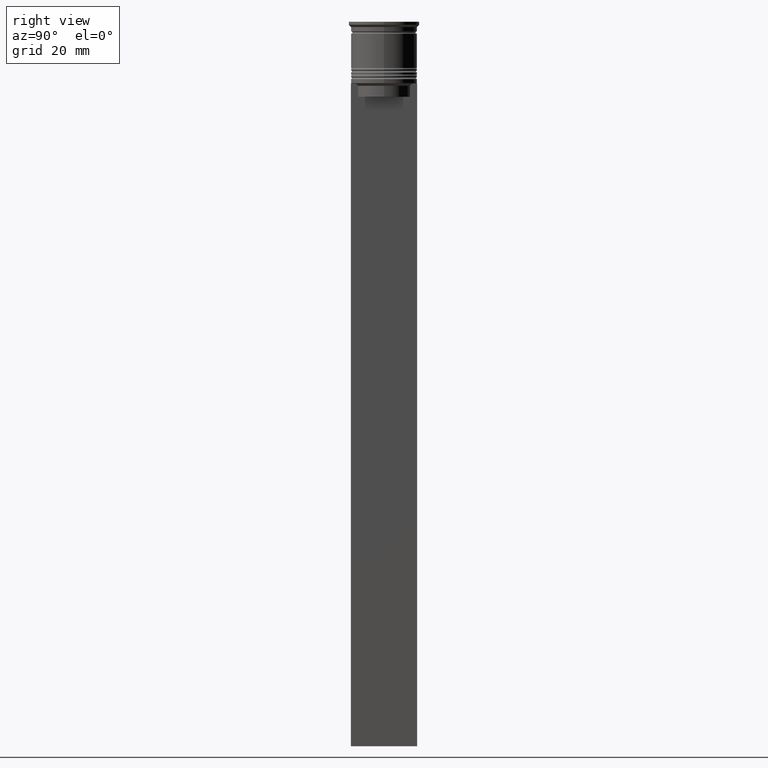
[diagram: clean part render]
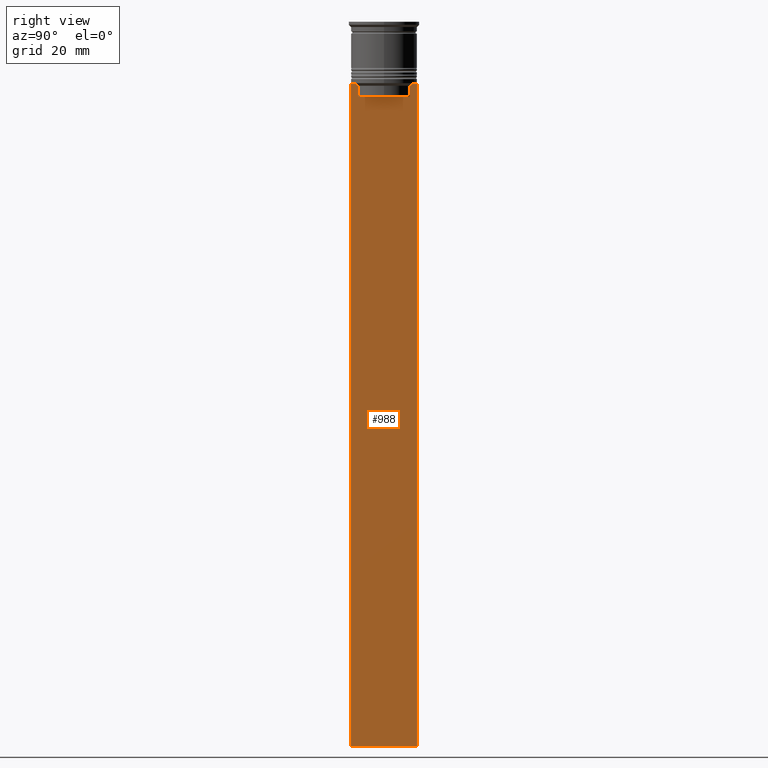
[diagram: same view with one face highlighted and labeled with its STEP entity id]
A machine part, right view. The second image highlights one B-rep face of the part: STEP entity #988.
In plain terms, the highlighted planar face has unit normal (-1, 0, 0).
Its self-contained STEP definition (entity closure, byte-faithful):
#14 = VERTEX_POINT ( 'NONE', #1249 ) ;
#16 = VECTOR ( 'NONE', #2387, 1000.000000000000000 ) ;
#17 = ORIENTED_EDGE ( 'NONE', *, *, #204, .T. ) ;
#111 = VECTOR ( 'NONE', #1079, 1000.000000000000000 ) ;
#159 = EDGE_CURVE ( 'NONE', #1204, #463, #1684, .T. ) ;
#169 = CARTESIAN_POINT ( 'NONE',  ( 0.5000000000000000000, -5.878775382679625849, -17.00000000000000000 ) ) ;
#193 = VECTOR ( 'NONE', #1290, 1000.000000000000000 ) ;
#204 = EDGE_CURVE ( 'NONE', #2077, #398, #2284, .T. ) ;
#208 = CARTESIAN_POINT ( 'NONE',  ( 0.5000000000000000000, -6.380438856379706536, -14.00000000000000178 ) ) ;
#214 = CARTESIAN_POINT ( 'NONE',  ( 0.5000000000000000000, -7.499999999999999112, -14.00000000000000178 ) ) ;
#227 = CARTESIAN_POINT ( 'NONE',  ( 0.5000000000000000000, -6.380438856379706536, -14.00000000000000178 ) ) ;
#290 = DIRECTION ( 'NONE',  ( -1.000000000000000000, 0.000000000000000000, 0.000000000000000000 ) ) ;
#297 = CARTESIAN_POINT ( 'NONE',  ( 0.5000000000000000000, 6.213239387491007015, -14.16668843563492430 ) ) ;
#328 = CARTESIAN_POINT ( 'NONE',  ( 0.5000000000000000000, 6.380438856379706536, -14.00000000000000178 ) ) ;
#331 = CARTESIAN_POINT ( 'NONE',  ( 0.5000000000000000000, 7.383088784512886527, -14.00000000000000178 ) ) ;
#342 = B_SPLINE_CURVE_WITH_KNOTS ( 'NONE', 3,
 ( #2128, #2072, #1937, #208 ),
 .UNSPECIFIED., .F., .F.,
 ( 4, 4 ),
 ( 0.02765270321082434479, 0.02836198271238431559 ),
 .UNSPECIFIED. ) ;
#398 = VERTEX_POINT ( 'NONE', #1179 ) ;
#419 = VECTOR ( 'NONE', #2192, 1000.000000000000000 ) ;
#432 = DIRECTION ( 'NONE',  ( 0.000000000000000000, 0.000000000000000000, -1.000000000000000000 ) ) ;
#435 = CARTESIAN_POINT ( 'NONE',  ( 0.5000000000000000000, 6.380438856379706536, -14.00000000000000178 ) ) ;
#463 = VERTEX_POINT ( 'NONE', #2179 ) ;
#464 = DIRECTION ( 'NONE',  ( 0.000000000000000000, 1.000000000000000000, 0.000000000000000000 ) ) ;
#471 = CARTESIAN_POINT ( 'NONE',  ( 0.5000000000000000000, -7.499999999999999112, -14.00000000000000178 ) ) ;
#518 = EDGE_CURVE ( 'NONE', #14, #1204, #649, .T. ) ;
#547 = DIRECTION ( 'NONE',  ( 0.000000000000000000, 0.000000000000000000, -1.000000000000000000 ) ) ;
#605 = DIRECTION ( 'NONE',  ( 0.000000000000000000, 0.000000000000000000, -1.000000000000000000 ) ) ;
#617 = ORIENTED_EDGE ( 'NONE', *, *, #2481, .T. ) ;
#633 = ORIENTED_EDGE ( 'NONE', *, *, #638, .T. ) ;
#638 = EDGE_CURVE ( 'NONE', #1934, #1193, #2225, .T. ) ;
#649 = LINE ( 'NONE', #659, #419 ) ;
#659 = CARTESIAN_POINT ( 'NONE',  ( 0.5000000000000000000, 5.899999999999998579, -17.00000000000000000 ) ) ;
#708 = LINE ( 'NONE', #1807, #2435 ) ;
#742 = VERTEX_POINT ( 'NONE', #2462 ) ;
#807 = DIRECTION ( 'NONE',  ( 0.000000000000000000, -1.000000000000000000, 0.000000000000000000 ) ) ;
#814 = EDGE_CURVE ( 'NONE', #463, #1934, #342, .T. ) ;
#850 = EDGE_CURVE ( 'NONE', #1043, #1539, #1753, .T. ) ;
#852 = CARTESIAN_POINT ( 'NONE',  ( 0.5000000000000000000, -7.499999999999999112, -14.00000000000000178 ) ) ;
#858 = ORIENTED_EDGE ( 'NONE', *, *, #1808, .T. ) ;
#888 = ORIENTED_EDGE ( 'NONE', *, *, #159, .T. ) ;
#896 = DIRECTION ( 'NONE',  ( 0.000000000000000000, -1.000000000000000000, 0.000000000000000000 ) ) ;
#951 = VECTOR ( 'NONE', #807, 1000.000000000000000 ) ;
#973 = ORIENTED_EDGE ( 'NONE', *, *, #1347, .T. ) ;
#988 = ADVANCED_FACE ( 'NONE', ( #2201 ), #1442, .F. ) ;
#1022 = ORIENTED_EDGE ( 'NONE', *, *, #850, .T. ) ;
#1043 = VERTEX_POINT ( 'NONE', #1065 ) ;
#1065 = CARTESIAN_POINT ( 'NONE',  ( 0.5000000000000000000, 7.500000000000002665, -14.00000000000000178 ) ) ;
#1079 = DIRECTION ( 'NONE',  ( 0.000000000000000000, -1.000000000000000000, 0.000000000000000000 ) ) ;
#1104 = VECTOR ( 'NONE', #432, 1000.000000000000000 ) ;
#1115 = CARTESIAN_POINT ( 'NONE',  ( 0.5000000000000000000, 5.878775382679625849, -14.50000000000000000 ) ) ;
#1150 = VECTOR ( 'NONE', #547, 1000.000000000000000 ) ;
#1169 = ORIENTED_EDGE ( 'NONE', *, *, #518, .T. ) ;
#1179 = CARTESIAN_POINT ( 'NONE',  ( 0.5000000000000000000, 5.878775382679625849, -14.50000000000000000 ) ) ;
#1193 = VERTEX_POINT ( 'NONE', #2274 ) ;
#1204 = VERTEX_POINT ( 'NONE', #169 ) ;
#1228 = LINE ( 'NONE', #1741, #1104 ) ;
#1249 = CARTESIAN_POINT ( 'NONE',  ( 0.5000000000000000000, 5.878775382679625849, -17.00000000000000000 ) ) ;
#1290 = DIRECTION ( 'NONE',  ( -0.000000000000000000, -0.000000000000000000, 1.000000000000000000 ) ) ;
#1295 = CARTESIAN_POINT ( 'NONE',  ( 0.5000000000000000000, 7.500000000000002665, 1.033296378372908997 ) ) ;
#1321 = LINE ( 'NONE', #1295, #1150 ) ;
#1336 = VERTEX_POINT ( 'NONE', #1793 ) ;
#1347 = EDGE_CURVE ( 'NONE', #398, #14, #1228, .T. ) ;
#1354 = VERTEX_POINT ( 'NONE', #1750 ) ;
#1415 = LINE ( 'NONE', #2417, #1490 ) ;
#1429 = EDGE_CURVE ( 'NONE', #1193, #1336, #708, .T. ) ;
#1442 = PLANE ( 'NONE',  #2226 ) ;
#1478 = CARTESIAN_POINT ( 'NONE',  ( 0.5000000000000000000, -5.878775382679625849, 0.000000000000000000 ) ) ;
#1490 = VECTOR ( 'NONE', #464, 1000.000000000000000 ) ;
#1500 = EDGE_LOOP ( 'NONE', ( #858, #17, #973, #1169, #888, #1533, #633, #1907, #1673, #617, #2447, #1022 ) ) ;
#1533 = ORIENTED_EDGE ( 'NONE', *, *, #814, .T. ) ;
#1539 = VERTEX_POINT ( 'NONE', #331 ) ;
#1673 = ORIENTED_EDGE ( 'NONE', *, *, #2020, .T. ) ;
#1684 = LINE ( 'NONE', #1478, #193 ) ;
#1741 = CARTESIAN_POINT ( 'NONE',  ( 0.5000000000000000000, 5.878775382679625849, 0.000000000000000000 ) ) ;
#1750 = CARTESIAN_POINT ( 'NONE',  ( 0.5000000000000000000, -7.499999999999999112, -163.9999999999999716 ) ) ;
#1753 = LINE ( 'NONE', #852, #16 ) ;
#1793 = CARTESIAN_POINT ( 'NONE',  ( 0.5000000000000000000, -7.499999999999999112, -14.00000000000000178 ) ) ;
#1800 = CARTESIAN_POINT ( 'NONE',  ( 0.5000000000000000000, -7.499999999999999112, 1.033296378372908997 ) ) ;
#1807 = CARTESIAN_POINT ( 'NONE',  ( 0.5000000000000000000, -7.499999999999999112, -14.00000000000000178 ) ) ;
#1808 = EDGE_CURVE ( 'NONE', #1539, #2077, #1941, .T. ) ;
#1885 = EDGE_CURVE ( 'NONE', #1043, #742, #1321, .T. ) ;
#1907 = ORIENTED_EDGE ( 'NONE', *, *, #1429, .T. ) ;
#1934 = VERTEX_POINT ( 'NONE', #227 ) ;
#1937 = CARTESIAN_POINT ( 'NONE',  ( 0.5000000000000000000, -6.213239311785844876, -14.16668851110870087 ) ) ;
#1941 = LINE ( 'NONE', #214, #951 ) ;
#2020 = EDGE_CURVE ( 'NONE', #1336, #1354, #2178, .T. ) ;
#2034 = DIRECTION ( 'NONE',  ( 0.000000000000000000, 0.000000000000000000, 1.000000000000000000 ) ) ;
#2052 = CARTESIAN_POINT ( 'NONE',  ( 0.5000000000000000000, 6.046020074006152711, -14.33335695351623151 ) ) ;
#2072 = CARTESIAN_POINT ( 'NONE',  ( 0.5000000000000000000, -6.046019991840948293, -14.33335703538585726 ) ) ;
#2077 = VERTEX_POINT ( 'NONE', #435 ) ;
#2128 = CARTESIAN_POINT ( 'NONE',  ( 0.5000000000000000000, -5.878775382679625849, -14.50000000000000000 ) ) ;
#2178 = LINE ( 'NONE', #1800, #2333 ) ;
#2179 = CARTESIAN_POINT ( 'NONE',  ( 0.5000000000000000000, -5.878775382679625849, -14.50000000000000000 ) ) ;
#2192 = DIRECTION ( 'NONE',  ( 0.000000000000000000, -1.000000000000000000, 0.000000000000000000 ) ) ;
#2201 = FACE_OUTER_BOUND ( 'NONE', #1500, .T. ) ;
#2225 = LINE ( 'NONE', #471, #111 ) ;
#2226 = AXIS2_PLACEMENT_3D ( 'NONE', #2436, #290, #2034 ) ;
#2274 = CARTESIAN_POINT ( 'NONE',  ( 0.5000000000000000000, -7.383088784512886527, -14.00000000000000178 ) ) ;
#2284 = B_SPLINE_CURVE_WITH_KNOTS ( 'NONE', 3,
 ( #328, #297, #2052, #1115 ),
 .UNSPECIFIED., .F., .F.,
 ( 4, 4 ),
 ( 0.01087727669788152163, 0.01158556069794289788 ),
 .UNSPECIFIED. ) ;
#2333 = VECTOR ( 'NONE', #605, 1000.000000000000000 ) ;
#2387 = DIRECTION ( 'NONE',  ( 0.000000000000000000, -1.000000000000000000, 0.000000000000000000 ) ) ;
#2417 = CARTESIAN_POINT ( 'NONE',  ( 0.5000000000000000000, -7.499999999999999112, -163.9999999999999716 ) ) ;
#2435 = VECTOR ( 'NONE', #896, 1000.000000000000000 ) ;
#2436 = CARTESIAN_POINT ( 'NONE',  ( 0.5000000000000000000, -7.499999999999999112, 1.033296378372908997 ) ) ;
#2447 = ORIENTED_EDGE ( 'NONE', *, *, #1885, .F. ) ;
#2462 = CARTESIAN_POINT ( 'NONE',  ( 0.5000000000000000000, 7.500000000000002665, -163.9999999999999716 ) ) ;
#2481 = EDGE_CURVE ( 'NONE', #1354, #742, #1415, .T. ) ;